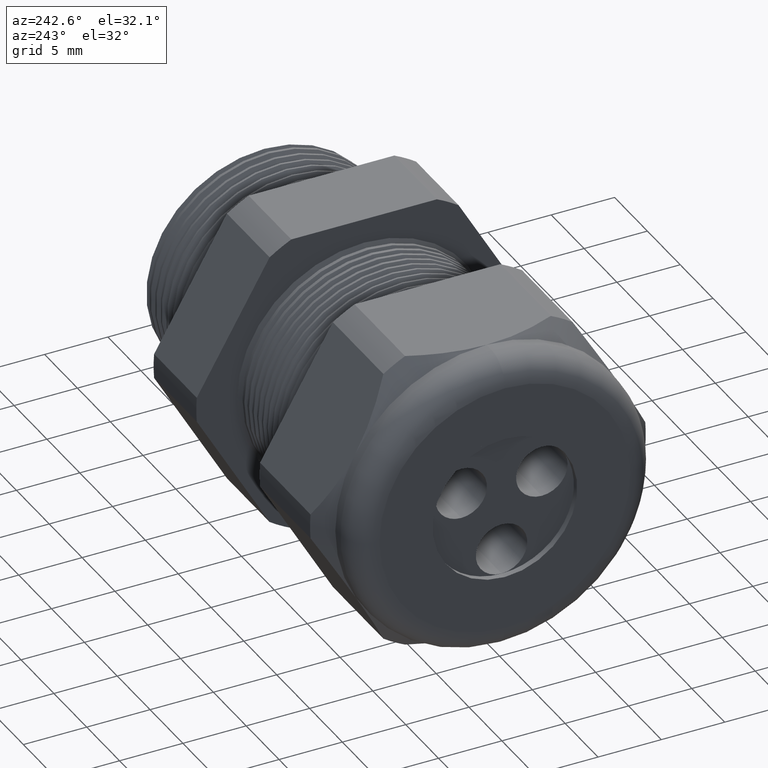
[diagram: clean part render]
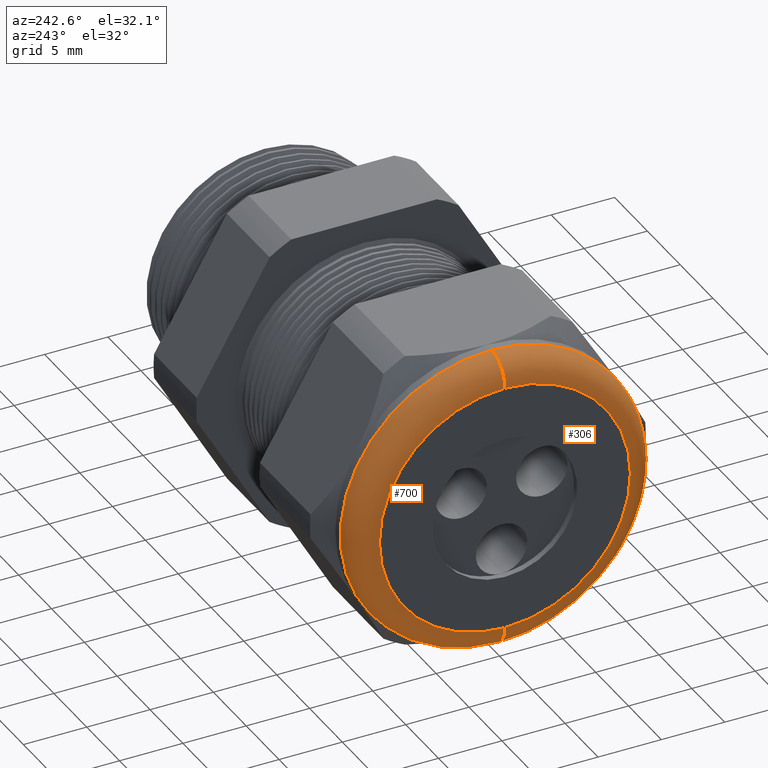
[diagram: same view with one multi-face feature highlighted, each face labeled with its STEP entity id]
A machine part, auxiliary view. The highlighted faces form ONE feature: a constant-radius fillet chain: 2 tangent blend faces with common blend radius 2.032 mm. The faces share edges in the B-rep.
Their STEP definitions:
[1] entity #700 (Torus):
#652 = EDGE_LOOP ( 'NONE', ( #1361, #1365, #1368, #1371 ) ) ;
#700 = ADVANCED_FACE ( 'NONE', ( #2815 ), #2814, .T. ) ;
#1361 = ORIENTED_EDGE ( 'NONE', *, *, #1362, .F. ) ;
#1362 = EDGE_CURVE ( 'NONE', #1363, #1364, #4135, .T. ) ;
#1363 = VERTEX_POINT ( 'NONE', #4130 ) ;
#1364 = VERTEX_POINT ( 'NONE', #4129 ) ;
#1365 = ORIENTED_EDGE ( 'NONE', *, *, #1366, .T. ) ;
#1366 = EDGE_CURVE ( 'NONE', #1363, #1367, #4128, .T. ) ;
#1367 = VERTEX_POINT ( 'NONE', #4123 ) ;
#1368 = ORIENTED_EDGE ( 'NONE', *, *, #1369, .F. ) ;
#1369 = EDGE_CURVE ( 'NONE', #1370, #1367, #4122, .T. ) ;
#1370 = VERTEX_POINT ( 'NONE', #4117 ) ;
#1371 = ORIENTED_EDGE ( 'NONE', *, *, #1372, .F. ) ;
#1372 = EDGE_CURVE ( 'NONE', #1364, #1370, #4115, .T. ) ;
#2810 = DIRECTION ( 'NONE',  ( 0.0000000000000000000, 0.0000000000000000000, 1.000000000000000000 ) ) ;
#2811 = DIRECTION ( 'NONE',  ( -1.000000000000000000, 0.0000000000000000000, 0.0000000000000000000 ) ) ;
#2812 = CARTESIAN_POINT ( 'NONE',  ( -1.330000000000000100, 0.0000000000000000000, 0.0000000000000000000 ) ) ;
#2813 = AXIS2_PLACEMENT_3D ( 'NONE', #2812, #2811, #2810 ) ;
#2814 = TOROIDAL_SURFACE ( 'NONE', #2813, 0.3899999999999999600, 0.08000000000000000200 ) ;
#2815 = FACE_OUTER_BOUND ( 'NONE', #652, .T. ) ;
#4114 = CARTESIAN_POINT ( 'NONE',  ( -1.330000000000000100, 0.0000000000000000000, 0.3899999999999999600 ) ) ;
#4115 = CIRCLE ( 'NONE', #4179, 0.07999999999999996000 ) ;
#4117 = CARTESIAN_POINT ( 'NONE',  ( -1.409999999999999900, 0.0000000000000000000, 0.3899999999999999600 ) ) ;
#4118 = DIRECTION ( 'NONE',  ( 0.0000000000000000000, 0.0000000000000000000, 1.000000000000000000 ) ) ;
#4119 = DIRECTION ( 'NONE',  ( -1.000000000000000000, 0.0000000000000000000, 0.0000000000000000000 ) ) ;
#4120 = CARTESIAN_POINT ( 'NONE',  ( -1.409999999999999900, 0.0000000000000000000, 0.0000000000000000000 ) ) ;
#4121 = AXIS2_PLACEMENT_3D ( 'NONE', #4120, #4119, #4118 ) ;
#4122 = CIRCLE ( 'NONE', #4121, 0.3899999999999999600 ) ;
#4123 = CARTESIAN_POINT ( 'NONE',  ( -1.409999999999999900, 5.265981236333617600E-017, -0.3899999999999999600 ) ) ;
#4124 = DIRECTION ( 'NONE',  ( 0.0000000000000000000, -1.224646799147353900E-016, 1.000000000000000000 ) ) ;
#4125 = DIRECTION ( 'NONE',  ( 0.0000000000000000000, 1.000000000000000000, 1.224646799147353200E-016 ) ) ;
#4126 = CARTESIAN_POINT ( 'NONE',  ( -1.330000000000000100, 4.776122516674676800E-017, -0.3899999999999999600 ) ) ;
#4127 = AXIS2_PLACEMENT_3D ( 'NONE', #4126, #4125, #4124 ) ;
#4128 = CIRCLE ( 'NONE', #4127, 0.07999999999999996000 ) ;
#4129 = CARTESIAN_POINT ( 'NONE',  ( -1.330000000000000100, 5.755839955992558400E-017, 0.4699999999999999200 ) ) ;
#4130 = CARTESIAN_POINT ( 'NONE',  ( -1.330000000000000100, 0.0000000000000000000, -0.4699999999999999200 ) ) ;
#4131 = DIRECTION ( 'NONE',  ( 0.0000000000000000000, 0.0000000000000000000, 1.000000000000000000 ) ) ;
#4132 = DIRECTION ( 'NONE',  ( 1.000000000000000000, 0.0000000000000000000, 0.0000000000000000000 ) ) ;
#4133 = CARTESIAN_POINT ( 'NONE',  ( -1.330000000000000100, 0.0000000000000000000, 0.0000000000000000000 ) ) ;
#4134 = AXIS2_PLACEMENT_3D ( 'NONE', #4133, #4132, #4131 ) ;
#4135 = CIRCLE ( 'NONE', #4134, 0.4699999999999999200 ) ;
#4177 = DIRECTION ( 'NONE',  ( 0.0000000000000000000, 0.0000000000000000000, -1.000000000000000000 ) ) ;
#4178 = DIRECTION ( 'NONE',  ( 0.0000000000000000000, -1.000000000000000000, 0.0000000000000000000 ) ) ;
#4179 = AXIS2_PLACEMENT_3D ( 'NONE', #4114, #4178, #4177 ) ;
[2] entity #306 (Torus):
#93 = EDGE_CURVE ( 'NONE', #1367, #1370, #1907, .T. ) ;
#151 = EDGE_CURVE ( 'NONE', #1364, #1363, #2057, .T. ) ;
#247 = EDGE_LOOP ( 'NONE', ( #307, #308, #309, #310 ) ) ;
#306 = ADVANCED_FACE ( 'NONE', ( #2281 ), #2280, .T. ) ;
#307 = ORIENTED_EDGE ( 'NONE', *, *, #1366, .F. ) ;
#308 = ORIENTED_EDGE ( 'NONE', *, *, #151, .F. ) ;
#309 = ORIENTED_EDGE ( 'NONE', *, *, #1372, .T. ) ;
#310 = ORIENTED_EDGE ( 'NONE', *, *, #93, .F. ) ;
#1363 = VERTEX_POINT ( 'NONE', #4130 ) ;
#1364 = VERTEX_POINT ( 'NONE', #4129 ) ;
#1366 = EDGE_CURVE ( 'NONE', #1363, #1367, #4128, .T. ) ;
#1367 = VERTEX_POINT ( 'NONE', #4123 ) ;
#1370 = VERTEX_POINT ( 'NONE', #4117 ) ;
#1372 = EDGE_CURVE ( 'NONE', #1364, #1370, #4115, .T. ) ;
#1903 = DIRECTION ( 'NONE',  ( 0.0000000000000000000, 0.0000000000000000000, 1.000000000000000000 ) ) ;
#1904 = DIRECTION ( 'NONE',  ( -1.000000000000000000, 0.0000000000000000000, 0.0000000000000000000 ) ) ;
#1905 = CARTESIAN_POINT ( 'NONE',  ( -1.409999999999999900, 0.0000000000000000000, 0.0000000000000000000 ) ) ;
#1906 = AXIS2_PLACEMENT_3D ( 'NONE', #1905, #1904, #1903 ) ;
#1907 = CIRCLE ( 'NONE', #1906, 0.3899999999999999600 ) ;
#2051 = DIRECTION ( 'NONE',  ( 0.0000000000000000000, 0.0000000000000000000, 1.000000000000000000 ) ) ;
#2052 = DIRECTION ( 'NONE',  ( 1.000000000000000000, 0.0000000000000000000, 0.0000000000000000000 ) ) ;
#2053 = CARTESIAN_POINT ( 'NONE',  ( -1.330000000000000100, 0.0000000000000000000, 0.0000000000000000000 ) ) ;
#2054 = AXIS2_PLACEMENT_3D ( 'NONE', #2053, #2052, #2051 ) ;
#2057 = CIRCLE ( 'NONE', #2054, 0.4699999999999999200 ) ;
#2277 = DIRECTION ( 'NONE',  ( 0.0000000000000000000, 0.0000000000000000000, 1.000000000000000000 ) ) ;
#2278 = DIRECTION ( 'NONE',  ( -1.000000000000000000, 0.0000000000000000000, 0.0000000000000000000 ) ) ;
#2279 = AXIS2_PLACEMENT_3D ( 'NONE', #2285, #2278, #2277 ) ;
#2280 = TOROIDAL_SURFACE ( 'NONE', #2279, 0.3899999999999999600, 0.08000000000000000200 ) ;
#2281 = FACE_OUTER_BOUND ( 'NONE', #247, .T. ) ;
#2285 = CARTESIAN_POINT ( 'NONE',  ( -1.330000000000000100, 0.0000000000000000000, 0.0000000000000000000 ) ) ;
#4114 = CARTESIAN_POINT ( 'NONE',  ( -1.330000000000000100, 0.0000000000000000000, 0.3899999999999999600 ) ) ;
#4115 = CIRCLE ( 'NONE', #4179, 0.07999999999999996000 ) ;
#4117 = CARTESIAN_POINT ( 'NONE',  ( -1.409999999999999900, 0.0000000000000000000, 0.3899999999999999600 ) ) ;
#4123 = CARTESIAN_POINT ( 'NONE',  ( -1.409999999999999900, 5.265981236333617600E-017, -0.3899999999999999600 ) ) ;
#4124 = DIRECTION ( 'NONE',  ( 0.0000000000000000000, -1.224646799147353900E-016, 1.000000000000000000 ) ) ;
#4125 = DIRECTION ( 'NONE',  ( 0.0000000000000000000, 1.000000000000000000, 1.224646799147353200E-016 ) ) ;
#4126 = CARTESIAN_POINT ( 'NONE',  ( -1.330000000000000100, 4.776122516674676800E-017, -0.3899999999999999600 ) ) ;
#4127 = AXIS2_PLACEMENT_3D ( 'NONE', #4126, #4125, #4124 ) ;
#4128 = CIRCLE ( 'NONE', #4127, 0.07999999999999996000 ) ;
#4129 = CARTESIAN_POINT ( 'NONE',  ( -1.330000000000000100, 5.755839955992558400E-017, 0.4699999999999999200 ) ) ;
#4130 = CARTESIAN_POINT ( 'NONE',  ( -1.330000000000000100, 0.0000000000000000000, -0.4699999999999999200 ) ) ;
#4177 = DIRECTION ( 'NONE',  ( 0.0000000000000000000, 0.0000000000000000000, -1.000000000000000000 ) ) ;
#4178 = DIRECTION ( 'NONE',  ( 0.0000000000000000000, -1.000000000000000000, 0.0000000000000000000 ) ) ;
#4179 = AXIS2_PLACEMENT_3D ( 'NONE', #4114, #4178, #4177 ) ;